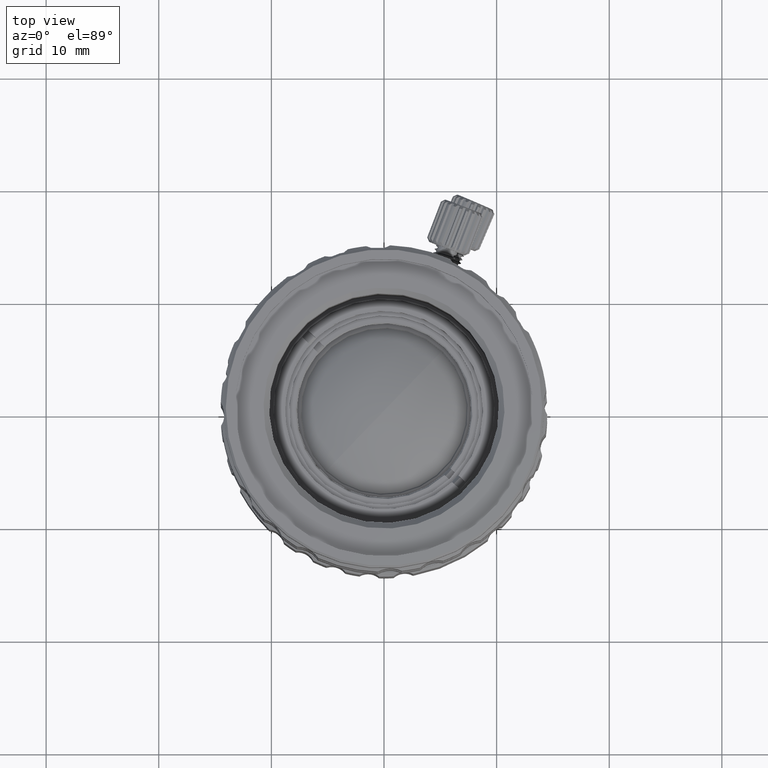
[diagram: clean part render]
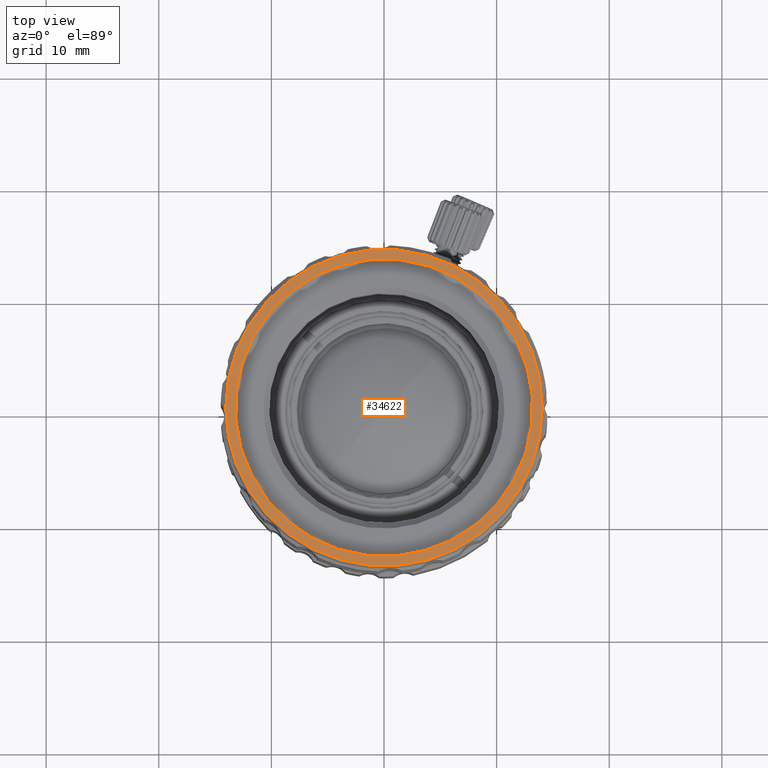
[diagram: same view with one face highlighted and labeled with its STEP entity id]
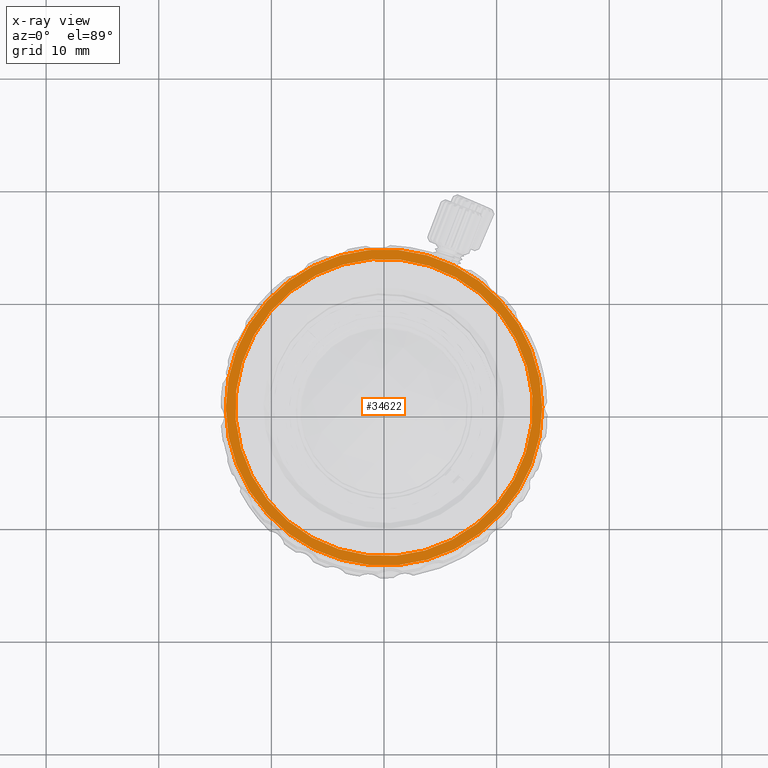
[diagram: x-ray of the same camera — body ghosted, the highlighted face saturated]
A machine part, top view. The second image highlights one B-rep face of the part: STEP entity #34622.
The next image is the same camera in x-ray: the body ghosted, the highlighted face saturated — about 0% of this face is hidden behind the body in this view.
In plain terms, the highlighted planar face has unit normal (0, 0, 1).
Its self-contained STEP definition (entity closure, byte-faithful):
#269 = ORIENTED_EDGE ( 'NONE', *, *, #12953, .F. ) ;
#4964 = AXIS2_PLACEMENT_3D ( 'NONE', #60663, #47726, #16799 ) ;
#11838 = AXIS2_PLACEMENT_3D ( 'NONE', #33994, #40505, #66050 ) ;
#12953 = EDGE_CURVE ( 'NONE', #67378, #68492, #37065, .T. ) ;
#16136 = DIRECTION ( 'NONE',  ( 0.000000000000000000, 0.000000000000000000, 1.000000000000000000 ) ) ;
#16741 = CARTESIAN_POINT ( 'NONE',  ( 0.000000000000000000, 0.000000000000000000, 45.61993545904999792 ) ) ;
#16799 = DIRECTION ( 'NONE',  ( -0.2756373558170111537, 0.9612616959383154525, 0.000000000000000000 ) ) ;
#16941 = EDGE_CURVE ( 'NONE', #68492, #67378, #33548, .T. ) ;
#21074 = CARTESIAN_POINT ( 'NONE',  ( -3.872704849278479244, 13.50572682810587999, 45.61993545904999792 ) ) ;
#22801 = AXIS2_PLACEMENT_3D ( 'NONE', #16741, #66716, #41563 ) ;
#23418 = CARTESIAN_POINT ( 'NONE',  ( 0.000000000000000000, 0.000000000000000000, 45.61993545904999792 ) ) ;
#23480 = EDGE_LOOP ( 'NONE', ( #28131, #48786 ) ) ;
#28131 = ORIENTED_EDGE ( 'NONE', *, *, #54602, .F. ) ;
#31972 = FACE_OUTER_BOUND ( 'NONE', #58848, .T. ) ;
#32044 = EDGE_CURVE ( 'NONE', #52299, #50037, #32542, .T. ) ;
#32542 = CIRCLE ( 'NONE', #61103, 13.20476795255999392 ) ;
#33548 = CIRCLE ( 'NONE', #4964, 14.04999999999999183 ) ;
#33994 = CARTESIAN_POINT ( 'NONE',  ( 0.000000000000000000, 0.000000000000000000, 45.61993545904999792 ) ) ;
#34352 = CARTESIAN_POINT ( 'NONE',  ( 0.000000000000000000, 0.000000000000000000, 45.61993545904999792 ) ) ;
#34622 = ADVANCED_FACE ( 'NONE', ( #31972, #40103 ), #78260, .T. ) ;
#37065 = CIRCLE ( 'NONE', #22801, 14.04999999999999183 ) ;
#37333 = CARTESIAN_POINT ( 'NONE',  ( 12.69323763654973725, 3.639727322620844863, 45.61993545904999792 ) ) ;
#40103 = FACE_BOUND ( 'NONE', #23480, .T. ) ;
#40505 = DIRECTION ( 'NONE',  ( 0.000000000000000000, 0.000000000000000000, 1.000000000000000000 ) ) ;
#40519 = CARTESIAN_POINT ( 'NONE',  ( -12.69323763654974258, -3.639727322620844863, 45.61993545904999792 ) ) ;
#41563 = DIRECTION ( 'NONE',  ( -0.2756373558170111537, 0.9612616959383154525, 0.000000000000000000 ) ) ;
#47076 = CIRCLE ( 'NONE', #76926, 13.20476795255999392 ) ;
#47726 = DIRECTION ( 'NONE',  ( 0.000000000000000000, 0.000000000000000000, -1.000000000000000000 ) ) ;
#48786 = ORIENTED_EDGE ( 'NONE', *, *, #32044, .F. ) ;
#50037 = VERTEX_POINT ( 'NONE', #37333 ) ;
#52299 = VERTEX_POINT ( 'NONE', #40519 ) ;
#52860 = CARTESIAN_POINT ( 'NONE',  ( 3.872704849278481021, -13.50572682810587999, 45.61993545904999792 ) ) ;
#54602 = EDGE_CURVE ( 'NONE', #50037, #52299, #47076, .T. ) ;
#58848 = EDGE_LOOP ( 'NONE', ( #77963, #269 ) ) ;
#59138 = DIRECTION ( 'NONE',  ( 0.9612616959383154525, 0.2756373558170111537, 0.000000000000000000 ) ) ;
#60663 = CARTESIAN_POINT ( 'NONE',  ( 0.000000000000000000, 0.000000000000000000, 45.61993545904999792 ) ) ;
#61103 = AXIS2_PLACEMENT_3D ( 'NONE', #34352, #72493, #59138 ) ;
#66050 = DIRECTION ( 'NONE',  ( 1.000000000000000000, 0.000000000000000000, 0.000000000000000000 ) ) ;
#66496 = DIRECTION ( 'NONE',  ( 0.9612616959383154525, 0.2756373558170111537, 0.000000000000000000 ) ) ;
#66716 = DIRECTION ( 'NONE',  ( 0.000000000000000000, 0.000000000000000000, -1.000000000000000000 ) ) ;
#67378 = VERTEX_POINT ( 'NONE', #52860 ) ;
#68492 = VERTEX_POINT ( 'NONE', #21074 ) ;
#72493 = DIRECTION ( 'NONE',  ( 0.000000000000000000, 0.000000000000000000, 1.000000000000000000 ) ) ;
#76926 = AXIS2_PLACEMENT_3D ( 'NONE', #23418, #16136, #66496 ) ;
#77963 = ORIENTED_EDGE ( 'NONE', *, *, #16941, .F. ) ;
#78260 = PLANE ( 'NONE',  #11838 ) ;